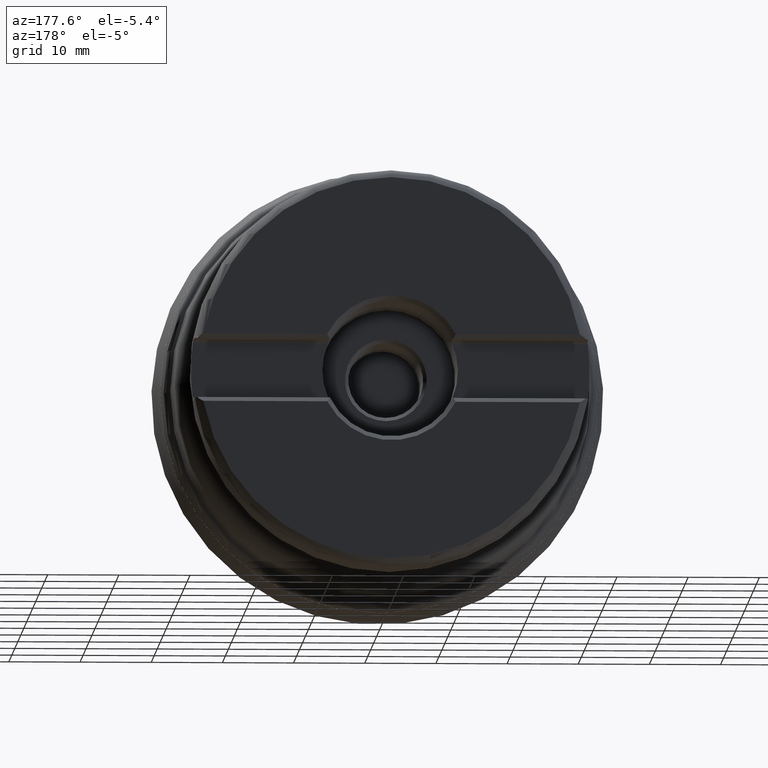
[diagram: clean part render]
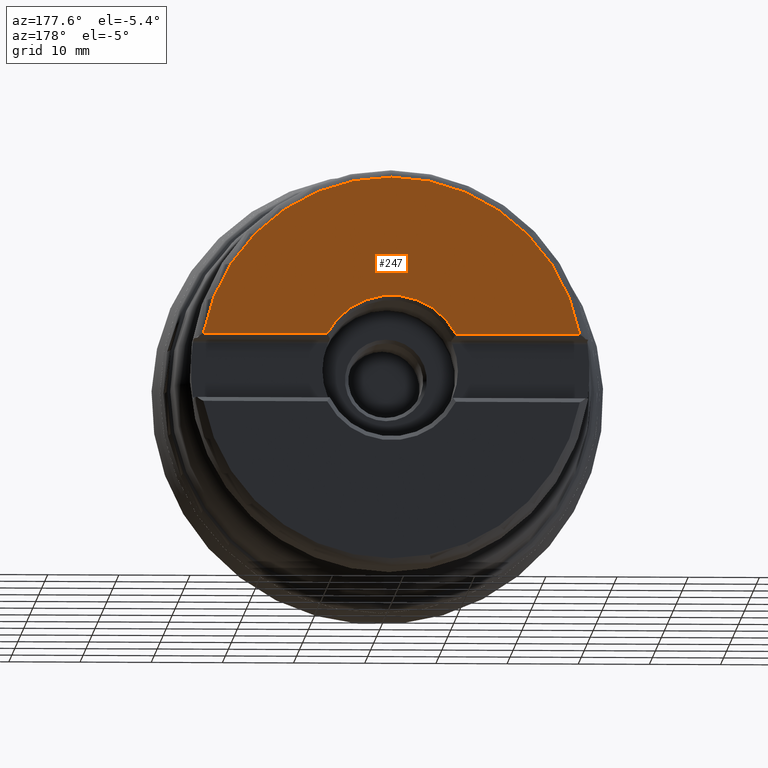
[diagram: same view with one face highlighted and labeled with its STEP entity id]
A machine part, auxiliary view. The second image highlights one B-rep face of the part: STEP entity #247.
In plain terms, the highlighted planar face has unit normal (0, -1, 0).
Its self-contained STEP definition (entity closure, byte-faithful):
#165=PLANE('',#1171);
#204=FACE_OUTER_BOUND('',#548,.T.);
#247=ADVANCED_FACE('',(#204),#165,.F.);
#367=LINE('',#1871,#395);
#368=LINE('',#1875,#396);
#395=VECTOR('',#1366,1.);
#396=VECTOR('',#1369,1.);
#548=EDGE_LOOP('',(#749,#750,#751,#752));
#749=ORIENTED_EDGE('',*,*,#945,.T.);
#750=ORIENTED_EDGE('',*,*,#1009,.T.);
#751=ORIENTED_EDGE('',*,*,#1010,.T.);
#752=ORIENTED_EDGE('',*,*,#1011,.T.);
#853=VERTEX_POINT('',#1576);
#854=VERTEX_POINT('',#1578);
#901=VERTEX_POINT('',#1872);
#902=VERTEX_POINT('',#1874);
#945=EDGE_CURVE('',#854,#853,#1048,.T.);
#1009=EDGE_CURVE('',#853,#901,#367,.T.);
#1010=EDGE_CURVE('',#901,#902,#1076,.T.);
#1011=EDGE_CURVE('',#902,#854,#368,.T.);
#1048=CIRCLE('',#1109,26.8717797887081);
#1076=CIRCLE('',#1170,10.2245065019629);
#1109=AXIS2_PLACEMENT_3D('',#1577,#1226,#1227);
#1170=AXIS2_PLACEMENT_3D('',#1873,#1367,#1368);
#1171=AXIS2_PLACEMENT_3D('',#1876,#1370,#1371);
#1226=DIRECTION('',(0.,1.,0.));
#1227=DIRECTION('',(0.,0.,-1.));
#1366=DIRECTION('',(-1.,0.,0.));
#1367=DIRECTION('',(0.,-1.,0.));
#1368=DIRECTION('',(0.,0.,-1.));
#1369=DIRECTION('',(-1.,0.,0.));
#1370=DIRECTION('',(0.,-1.,0.));
#1371=DIRECTION('',(0.,0.,-1.));
#1576=CARTESIAN_POINT('',(26.4441283466259,49.9999999999985,4.77499999999999));
#1577=CARTESIAN_POINT('',(0.,49.9999999999985,0.));
#1578=CARTESIAN_POINT('',(-26.4441283466259,49.9999999999985,4.77499999999999));
#1871=CARTESIAN_POINT('',(8.67182220795178,49.9999999999985,4.77499999999999));
#1872=CARTESIAN_POINT('',(9.04101256545312,49.9999999999985,4.77499999999997));
#1873=CARTESIAN_POINT('',(0.,49.9999999999985,0.));
#1874=CARTESIAN_POINT('',(-9.04101256545312,49.9999999999985,4.77499999999999));
#1875=CARTESIAN_POINT('',(-26.545468992143,49.9999999999985,4.77499999999999));
#1876=CARTESIAN_POINT('',(0.,49.9999999999985,-15.0875));